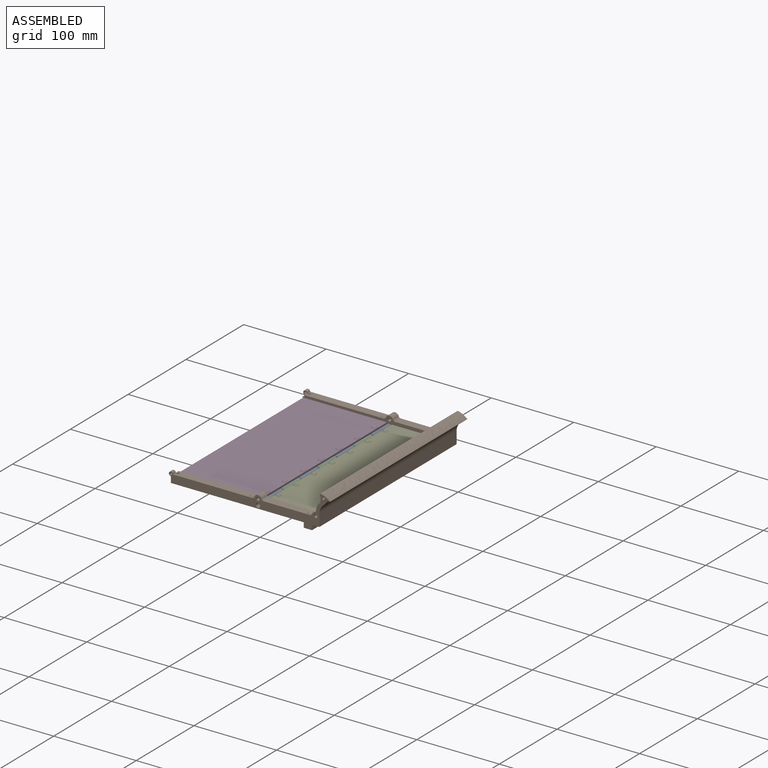
[diagram: assembled view]
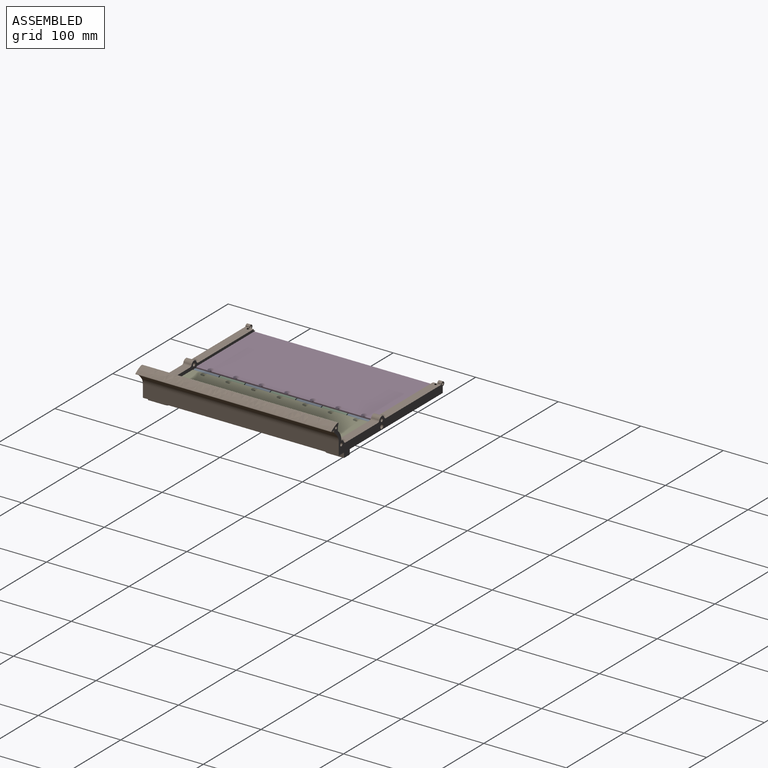
[diagram: assembled view, second angle]
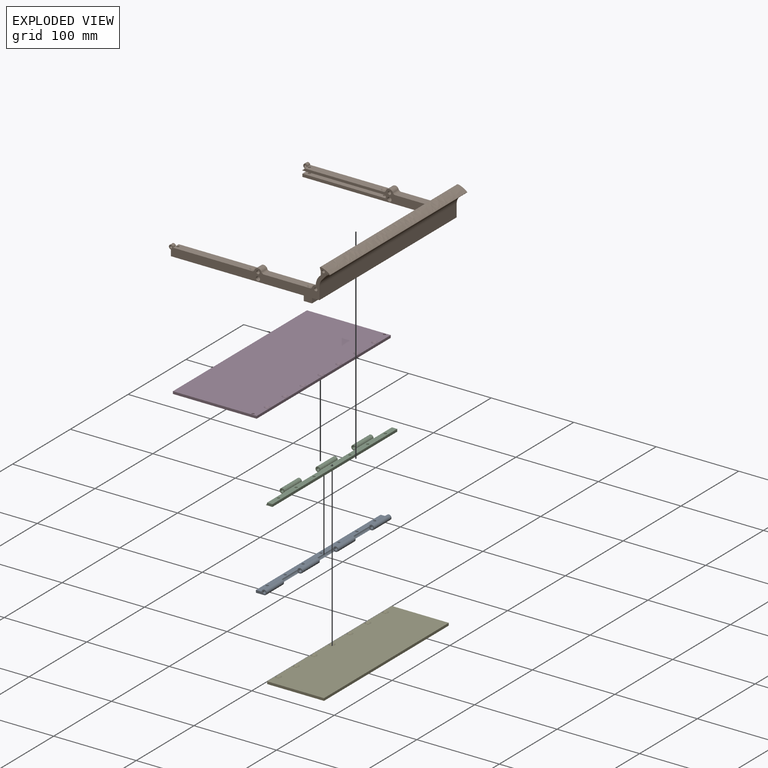
[diagram: exploded view]
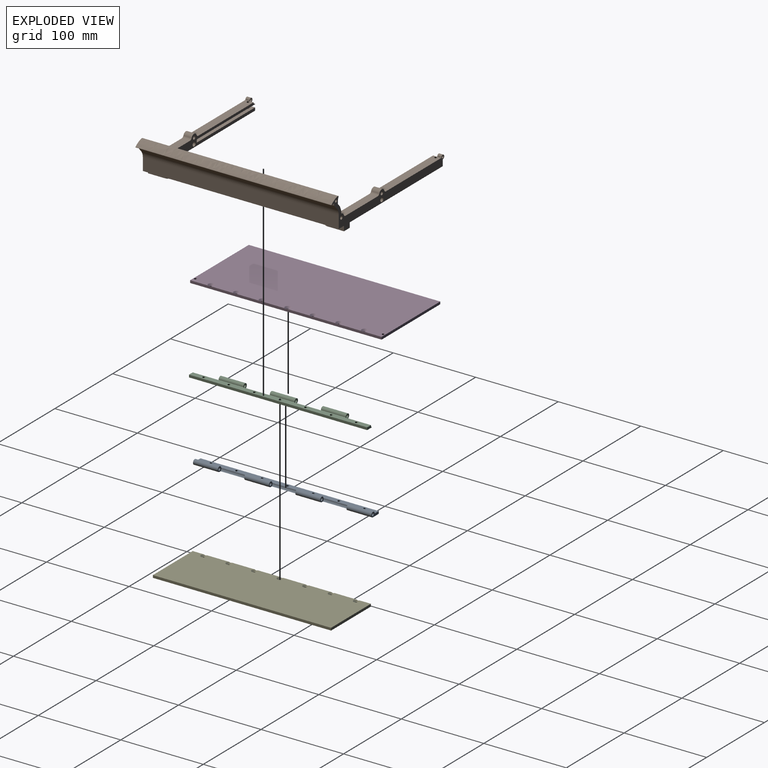
[diagram: exploded view, second angle]
ASSEMBLY  parts=5 mates=6
PART A: 29 faces, bbox 13x6x216 mm
  f0: plane 6.5x6mm, normal (0,0,1), area 21.1mm2, adj f1,f2,f5,f6,f7
  f1: plane 216x10mm, normal (0,-1,0), area 1937.5mm2, adj f0,f3,f4,f6,f7,f8,f9,f11
  f2: plane 216x7mm, normal (0,1,0), area 1414.5mm2, adj f0,f3,f4,f6,f7,f8,f9,f11
  f3: plane 216x3mm, normal (-1,0,0), area 648mm2, adj f1,f2,f4,f18
  f4: plane 13x6mm, normal (0,0,-1), area 42.1mm2, adj f1,f2,f3,f5,f6
  f5: cylinder r=1.7mm len=30mm, axis (0,0,-1), area 320.4mm2, adj f0,f4
  f6: cylinder r=3mm len=30mm, axis (0,0,-1), area 424.1mm2, adj f0,f1,f2,f4
  f7: cylinder r=3.5mm len=32mm, axis (0,0,-1), area 115.3mm2, adj f0,f1,f2,f8
  f8: plane 6.5x6mm, normal (0,0,-1), area 21.1mm2, adj f1,f2,f7,f10,f11
  f9: plane 6.5x6mm, normal (0,0,1), area 21.1mm2, adj f1,f2,f10,f11,f12
  f10: cylinder r=1.7mm len=30mm, axis (0,0,-1), area 320.4mm2, adj f8,f9
  f11: cylinder r=3mm len=30mm, axis (0,0,-1), area 424.1mm2, adj f1,f2,f8,f9
  f12: cylinder r=3.5mm len=32mm, axis (0,0,-1), area 115.3mm2, adj f1,f2,f9,f23
  f13: cylinder r=1.5mm len=3mm, axis (0,1,0), area 28.3mm2, adj f1,f2
  f14: cylinder r=1.5mm len=3mm, axis (0,1,0), area 28.3mm2, adj f1,f2
  f15: cylinder r=1.5mm len=3mm, axis (0,1,0), area 28.3mm2, adj f1,f2
  f16: cylinder r=1.5mm len=3mm, axis (0,1,0), area 28.3mm2, adj f1,f2
  f17: plane 6.5x6mm, normal (0,0,-1), area 21.1mm2, adj f1,f2,f19,f20,f21
  f18: plane 13x6mm, normal (0,0,1), area 42.1mm2, adj f1,f2,f3,f19,f20
  f19: cylinder r=1.7mm len=30mm, axis (0,0,1), area 320.4mm2, adj f17,f18
  f20: cylinder r=3mm len=30mm, axis (0,0,1), area 424.1mm2, adj f1,f2,f17,f18
  f21: cylinder r=3.5mm len=32mm, axis (0,0,1), area 115.3mm2, adj f1,f2,f17,f22
  f22: plane 6.5x6mm, normal (0,0,1), area 21.1mm2, adj f1,f2,f21,f24,f25
  f23: plane 6.5x6mm, normal (0,0,-1), area 21.1mm2, adj f1,f2,f12,f24,f25
  f24: cylinder r=1.7mm len=30mm, axis (0,0,1), area 320.4mm2, adj f22,f23
  f25: cylinder r=3mm len=30mm, axis (0,0,1), area 424.1mm2, adj f1,f2,f22,f23
  f26: cylinder r=1.5mm len=3mm, axis (0,1,0), area 28.3mm2, adj f1,f2
  f27: cylinder r=1.5mm len=3mm, axis (0,1,0), area 28.3mm2, adj f1,f2
  f28: cylinder r=1.5mm len=3mm, axis (0,1,0), area 28.3mm2, adj f1,f2
PART B: 90 faces, bbox 195.8x237.5x43.1 mm
  f0: plane 195.77x43.05mm, normal (0,1,0), area 2025.3mm2, adj f1,f3,f5,f8,f9,f10,f13,f14
  f1: plane 20.19x6mm, normal (1,0,0), area 90.6mm2, adj f0,f2,f17,f45,f46,f47
  f2: plane 188x33.83mm, normal (0,-1,0), area 1526.5mm2, adj f1,f3,f5,f6,f7,f8,f9,f10
  f3: plane 20.19x6mm, normal (-1,0,0), area 90.6mm2, adj f0,f2,f5,f45,f46,f47
  f4: cylinder r=1.5mm len=14.12mm, axis (0,0,1), area 132.1mm2, adj f26,f27,f47
  f5: plane 161x10mm, normal (0,0,-1), area 1595.9mm2, adj f0,f2,f3,f11,f12,f13
  f6: plane 217.5x15mm, normal (-1,0,0), area 3262.5mm2, adj f2,f7,f17,f52
  f7: cylinder r=14mm len=217.5mm, axis (0,1,0), area 3900.8mm2, adj f2,f6,f38,f52
  f8: cylinder r=4.5mm len=10mm, axis (0,1,0), area 56.1mm2, adj f0,f2,f25,f40
  f9: plane 95.93x10mm, normal (0,0,1), area 917.5mm2, adj f0,f2,f15,f23,f28,f33,f35
  f10: plane 55.86x10mm, normal (0,0,1), area 523.8mm2, adj f0,f2,f24,f25,f26
  f11: cylinder r=1.5mm len=3.5mm, axis (0,0,-1), area 33mm2, adj f5,f21
  f12: cylinder r=1.5mm len=3.5mm, axis (0,0,-1), area 33mm2, adj f5,f21
  f13: plane 10x7.5mm, normal (-1,0,0), area 47mm2, adj f0,f2,f5,f19,f20,f21,f33,f35
  f14: plane 237.5x15mm, normal (1,0,0), area 3562.5mm2, adj f0,f17,f37,f50
  f15: cylinder r=1.5mm len=3mm, axis (0,0,-1), area 28.3mm2, adj f9,f20
  f16: cylinder r=1.5mm len=3mm, axis (0,0,-1), area 9.4mm2, adj f20,f28,f29
  f17: plane 237.5x9mm, normal (0,0,-1), area 615mm2, adj f0,f1,f2,f6,f14,f50,f51,f52
  f18: plane 8x3.5mm, normal (-1,0,0), area 28mm2, adj f2,f19,f20,f21
  f19: plane 101x3.5mm, normal (0,-1,0), area 353.5mm2, adj f13,f18,f20,f21
  f20: plane 101x8mm, normal (0,0,-1), area 793.9mm2, adj f2,f13,f15,f16,f18,f19
  f21: plane 101x8mm, normal (0,0,1), area 793.9mm2, adj f2,f11,f12,f13,f18,f19
  f22: cylinder r=4.5mm len=10mm, axis (0,1,0), area 110.8mm2, adj f0,f2,f23,f24
  f23: cylinder r=3mm len=10mm, axis (0,1,0), area 34.7mm2, adj f0,f2,f9,f22,f29
  f24: cylinder r=3mm len=10mm, axis (0,1,0), area 36.9mm2, adj f0,f2,f10,f22
  f25: cylinder r=3mm len=10mm, axis (0,1,0), area 34.7mm2, adj f0,f2,f8,f10,f27
  f26: cone r=1.5mm half-angle=45deg, axis (0,0,1), area 33.1mm2, adj f4,f10,f27
  f27: bspline ~5.04x2.07mm, area 10.1mm2, adj f4,f25,f26
  f28: cone r=1.5mm half-angle=45deg, axis (0,0,1), area 33.1mm2, adj f9,f16,f29
  f29: bspline ~5.04x2.07mm, area 10.1mm2, adj f16,f23,f28
  f30: cylinder r=1.95mm len=10mm, axis (0,1,0), area 122.5mm2, adj f0,f2
  f31: cylinder r=1.95mm len=10mm, axis (0,1,0), area 122.5mm2, adj f0,f2
  f32: cylinder r=2.5mm len=10mm, axis (0,1,0), area 157.1mm2, adj f0,f2
  f33: cylinder r=2.5mm len=5mm, axis (0,1,0), area 19.6mm2, adj f2,f9,f13,f36
  f34: cylinder r=1.5mm len=5mm, axis (0,1,0), area 47.1mm2, adj f0,f36
  f35: cylinder r=2.5mm len=5mm, axis (0,1,0), area 58.9mm2, adj f0,f9,f13,f36
  f36: plane 5x5mm, normal (0,-1,0), area 12.6mm2, adj f33,f34,f35
  f37: cylinder r=12mm len=237.5mm, axis (0,1,0), area 2283.4mm2, adj f0,f14,f38,f50
  f38: plane 237.5x4.8mm, normal (0.74,0,-0.67), area 1538.2mm2, adj f0,f7,f37,f39,f50,f83
  f39: plane 10x2.41mm, normal (1,0,0.02), area 24.1mm2, adj f0,f2,f38,f43
  f40: cylinder r=16.43mm len=12.77mm, axis (0,1,0), area 146.3mm2, adj f0,f2,f8,f43
  f41: cylinder r=16.43mm len=217.5mm, axis (0,1,0), area 1420mm2, adj f2,f42,f43,f52
  f42: extruded ~217.5x0.53mm, area 115.7mm2, adj f2,f41,f43,f52
  f43: extruded ~237.5x12.33mm, area 6605.6mm2, adj f0,f39,f40,f41,f42,f50,f83,f84
  f44: cylinder r=1.7mm len=237.5mm, axis (0,1,0), area 2536.8mm2, adj f0,f50
  f45: plane 15.19x10mm, normal (0,0,1), area 128.6mm2, adj f1,f2,f3,f46,f48
  f46: cylinder r=5mm len=10mm, axis (0,0,1), area 47.1mm2, adj f1,f3,f45,f47
  f47: plane 25.19x10mm, normal (0,0,-1), area 234.1mm2, adj f0,f1,f3,f4,f46
  f48: cylinder r=2mm len=4mm, axis (0,0,1), area 37.7mm2, adj f45,f49
  f49: plane 4x4mm, normal (0,0,1), area 12.6mm2, adj f48
  f50: plane 195.77x43.05mm, normal (0,-1,0), area 2025.3mm2, adj f14,f17,f37,f38,f43,f44,f51,f53
  f51: plane 20.19x6mm, normal (1,0,0), area 90.6mm2, adj f17,f50,f52,f85,f86,f87
  f52: plane 188x33.83mm, normal (0,1,0), area 1526.5mm2, adj f6,f7,f17,f41,f42,f51,f53,f55
  f53: plane 20.19x6mm, normal (-1,0,0), area 90.6mm2, adj f50,f52,f55,f85,f86,f87
  f54: cylinder r=1.5mm len=14.12mm, axis (0,0,1), area 132.1mm2, adj f72,f73,f87
  f55: plane 161x10mm, normal (0,0,-1), area 1595.9mm2, adj f50,f52,f53,f59,f60,f61
  f56: cylinder r=4.5mm len=10mm, axis (0,-1,0), area 56.1mm2, adj f50,f52,f71,f84
  f57: plane 95.93x10mm, normal (0,0,1), area 917.5mm2, adj f50,f52,f62,f69,f74,f79,f81
  f58: plane 55.86x10mm, normal (0,0,1), area 523.8mm2, adj f50,f52,f70,f71,f72
  f59: cylinder r=1.5mm len=3.5mm, axis (0,0,-1), area 33mm2, adj f55,f67
  f60: cylinder r=1.5mm len=3.5mm, axis (0,0,-1), area 33mm2, adj f55,f67
  f61: plane 10x7.5mm, normal (-1,0,0), area 47mm2, adj f50,f52,f55,f65,f66,f67,f79,f81
  f62: cylinder r=1.5mm len=3mm, axis (0,0,-1), area 28.3mm2, adj f57,f66
  f63: cylinder r=1.5mm len=3mm, axis (0,0,-1), area 9.4mm2, adj f66,f74,f75
  f64: plane 8x3.5mm, normal (-1,0,0), area 28mm2, adj f52,f65,f66,f67
  f65: plane 101x3.5mm, normal (0,1,0), area 353.5mm2, adj f61,f64,f66,f67
  f66: plane 101x8mm, normal (0,0,-1), area 793.9mm2, adj f52,f61,f62,f63,f64,f65
  f67: plane 101x8mm, normal (0,0,1), area 793.9mm2, adj f52,f59,f60,f61,f64,f65
  f68: cylinder r=4.5mm len=10mm, axis (0,-1,0), area 110.8mm2, adj f50,f52,f69,f70
  f69: cylinder r=3mm len=10mm, axis (0,-1,0), area 34.7mm2, adj f50,f52,f57,f68,f75
  f70: cylinder r=3mm len=10mm, axis (0,-1,0), area 36.9mm2, adj f50,f52,f58,f68
  f71: cylinder r=3mm len=10mm, axis (0,-1,0), area 34.7mm2, adj f50,f52,f56,f58,f73
  f72: cone r=1.5mm half-angle=45deg, axis (0,0,1), area 33.1mm2, adj f54,f58,f73
  f73: bspline ~5.04x2.07mm, area 10.1mm2, adj f54,f71,f72
  f74: cone r=1.5mm half-angle=45deg, axis (0,0,1), area 33.1mm2, adj f57,f63,f75
  f75: bspline ~5.04x2.07mm, area 10.1mm2, adj f63,f69,f74
  f76: cylinder r=1.95mm len=10mm, axis (0,-1,0), area 122.5mm2, adj f50,f52
  f77: cylinder r=1.95mm len=10mm, axis (0,-1,0), area 122.5mm2, adj f50,f52
  f78: cylinder r=2.5mm len=10mm, axis (0,-1,0), area 157.1mm2, adj f50,f52
  f79: cylinder r=2.5mm len=5mm, axis (0,-1,0), area 19.6mm2, adj f52,f57,f61,f82
  f80: cylinder r=1.5mm len=5mm, axis (0,-1,0), area 47.1mm2, adj f50,f82
  f81: cylinder r=2.5mm len=5mm, axis (0,-1,0), area 58.9mm2, adj f50,f57,f61,f82
  f82: plane 5x5mm, normal (0,1,0), area 12.6mm2, adj f79,f80,f81
  f83: plane 10x2.41mm, normal (1,0,0.02), area 24.1mm2, adj f38,f43,f50,f52
  f84: cylinder r=16.43mm len=12.77mm, axis (0,-1,0), area 146.3mm2, adj f43,f50,f52,f56
  f85: plane 15.19x10mm, normal (0,0,1), area 128.6mm2, adj f51,f52,f53,f86,f88
  f86: cylinder r=5mm len=10mm, axis (0,0,1), area 47.1mm2, adj f51,f53,f85,f87
  f87: plane 25.19x10mm, normal (0,0,-1), area 234.1mm2, adj f50,f51,f53,f54,f86
  f88: cylinder r=2mm len=4mm, axis (0,0,1), area 37.7mm2, adj f85,f89
  f89: plane 4x4mm, normal (0,0,1), area 12.6mm2, adj f88
PART C: 28 faces, bbox 13x6x216 mm
  f0: cylinder r=3.5mm len=31mm, axis (0,0,-1), area 111.7mm2, adj f1,f3,f4,f5
  f1: plane 216x10mm, normal (0,-1,0), area 1883.4mm2, adj f0,f2,f4,f5,f6,f8,f9,f10
  f2: plane 216x3mm, normal (1,0,0), area 648mm2, adj f1,f3,f4,f18
  f3: plane 216x7mm, normal (0,1,0), area 1399.5mm2, adj f0,f2,f4,f5,f6,f8,f9,f10
  f4: plane 8.2x3mm, normal (0,0,-1), area 21mm2, adj f0,f1,f2,f3
  f5: plane 6.5x6mm, normal (0,0,-1), area 21.1mm2, adj f0,f1,f3,f7,f8
  f6: plane 6.5x6mm, normal (0,0,1), area 21.1mm2, adj f1,f3,f7,f8,f9
  f7: cylinder r=1.7mm len=30mm, axis (0,0,-1), area 320.4mm2, adj f5,f6
  f8: cylinder r=3mm len=30mm, axis (0,0,-1), area 424.1mm2, adj f1,f3,f5,f6
  f9: cylinder r=3.5mm len=32mm, axis (0,0,-1), area 115.3mm2, adj f1,f3,f6,f10
  f10: plane 6.5x6mm, normal (0,0,-1), area 21.1mm2, adj f1,f3,f9,f11,f12
  f11: cylinder r=1.7mm len=30mm, axis (0,0,-1), area 320.4mm2, adj f10,f24
  f12: cylinder r=3mm len=30mm, axis (0,0,-1), area 424.1mm2, adj f1,f3,f10,f24
  f13: cylinder r=1.5mm len=3mm, axis (0,-1,0), area 28.3mm2, adj f1,f3
  f14: cylinder r=1.5mm len=3mm, axis (0,-1,0), area 28.3mm2, adj f1,f3
  f15: cylinder r=1.5mm len=3mm, axis (0,-1,0), area 28.3mm2, adj f1,f3
  f16: cylinder r=1.5mm len=3mm, axis (0,-1,0), area 28.3mm2, adj f1,f3
  f17: cylinder r=3.5mm len=31mm, axis (0,0,1), area 111.7mm2, adj f1,f3,f18,f19
  f18: plane 8.2x3mm, normal (0,0,1), area 21mm2, adj f1,f2,f3,f17
  f19: plane 6.5x6mm, normal (0,0,1), area 21.1mm2, adj f1,f3,f17,f21,f22
  f20: plane 6.5x6mm, normal (0,0,-1), area 21.1mm2, adj f1,f3,f21,f22,f23
  f21: cylinder r=1.7mm len=30mm, axis (0,0,1), area 320.4mm2, adj f19,f20
  f22: cylinder r=3mm len=30mm, axis (0,0,1), area 424.1mm2, adj f1,f3,f19,f20
  f23: cylinder r=3.5mm len=32mm, axis (0,0,1), area 115.3mm2, adj f1,f3,f20,f24
  f24: plane 6.5x6mm, normal (0,0,1), area 21.1mm2, adj f1,f3,f11,f12,f23
  f25: cylinder r=1.5mm len=3mm, axis (0,-1,0), area 28.3mm2, adj f1,f3
  f26: cylinder r=1.5mm len=3mm, axis (0,-1,0), area 28.3mm2, adj f1,f3
  f27: cylinder r=1.5mm len=3mm, axis (0,-1,0), area 28.3mm2, adj f1,f3
PART D: 22 faces, bbox 101.8x3x232 mm
  f0: plane 232x101.5mm, normal (0,-1,0), area 23484.4mm2, adj f1,f3,f4,f5,f6,f7,f8,f9
  f1: plane 232x3mm, normal (1,0,0), area 693mm2, adj f0,f2,f4,f10,f11,f12,f13,f14
  f2: plane 232x101.5mm, normal (0,1,0), area 23267.5mm2, adj f1,f3,f4,f9,f10,f11,f12,f13
  f3: plane 232x3mm, normal (-1,0,0), area 696mm2, adj f0,f2,f4,f14
  f4: plane 101.5x3mm, normal (0,0,-1), area 304.5mm2, adj f0,f1,f2,f3
  f5: cylinder r=1.5mm len=3mm, axis (0,1,0), area 9.4mm2, adj f0,f10
  f6: cylinder r=1.5mm len=3mm, axis (0,1,0), area 9.4mm2, adj f0,f13
  f7: cylinder r=1.5mm len=3mm, axis (0,1,0), area 9.4mm2, adj f0,f12
  f8: cylinder r=1.5mm len=3mm, axis (0,1,0), area 9.4mm2, adj f0,f11
  f9: cylinder r=1.5mm len=3mm, axis (0,1,0), area 28.3mm2, adj f0,f2
  f10: cone r=3.5mm half-angle=45deg, axis (0,1,0), area 43.8mm2, adj f1,f2,f5
  f11: cone r=3.5mm half-angle=45deg, axis (0,1,0), area 43.8mm2, adj f1,f2,f8
  f12: cone r=3.5mm half-angle=45deg, axis (0,1,0), area 43.8mm2, adj f1,f2,f7
  f13: cone r=3.5mm half-angle=45deg, axis (0,1,0), area 43.8mm2, adj f1,f2,f6
  f14: plane 101.5x3mm, normal (0,0,1), area 304.5mm2, adj f0,f1,f2,f3
  f15: cylinder r=1.5mm len=3mm, axis (0,1,0), area 9.4mm2, adj f0,f21
  f16: cylinder r=1.5mm len=3mm, axis (0,1,0), area 9.4mm2, adj f0,f20
  f17: cylinder r=1.5mm len=3mm, axis (0,1,0), area 9.4mm2, adj f0,f19
  f18: cylinder r=1.5mm len=3mm, axis (0,1,0), area 28.3mm2, adj f0,f2
  f19: cone r=3.5mm half-angle=45deg, axis (0,1,0), area 43.8mm2, adj f1,f2,f17
  f20: cone r=3.5mm half-angle=45deg, axis (0,1,0), area 43.8mm2, adj f1,f2,f16
  f21: cone r=3.5mm half-angle=45deg, axis (0,1,0), area 43.8mm2, adj f1,f2,f15
PART E: 20 faces, bbox 69.5x3x216 mm
  f0: plane 216x69mm, normal (0,1,0), area 14643.1mm2, adj f1,f3,f4,f9,f10,f11,f12,f13
  f1: plane 216x3mm, normal (-1,0,0), area 639.7mm2, adj f0,f2,f4,f9,f10,f11,f12,f13
  f2: plane 216x69mm, normal (0,-1,0), area 14854.5mm2, adj f1,f3,f4,f5,f6,f7,f8,f13
  f3: plane 216x3mm, normal (1,0,0), area 648mm2, adj f0,f2,f4,f13
  f4: plane 69x3mm, normal (0,0,-1), area 207mm2, adj f0,f1,f2,f3
  f5: cylinder r=1.5mm len=3mm, axis (0,-1,0), area 9.4mm2, adj f2,f12
  f6: cylinder r=1.5mm len=3mm, axis (0,-1,0), area 9.4mm2, adj f2,f9
  f7: cylinder r=1.5mm len=3mm, axis (0,-1,0), area 9.4mm2, adj f2,f10
  f8: cylinder r=1.5mm len=3mm, axis (0,-1,0), area 9.4mm2, adj f2,f11
  f9: cone r=3.5mm half-angle=45deg, axis (0,1,0), area 42.7mm2, adj f0,f1,f6
  f10: cone r=3.5mm half-angle=45deg, axis (0,1,0), area 42.7mm2, adj f0,f1,f7
  f11: cone r=3.5mm half-angle=45deg, axis (0,1,0), area 42.7mm2, adj f0,f1,f8
  f12: cone r=3.5mm half-angle=45deg, axis (0,1,0), area 42.7mm2, adj f0,f1,f5
  f13: plane 69x3mm, normal (0,0,1), area 207mm2, adj f0,f1,f2,f3
  f14: cylinder r=1.5mm len=3mm, axis (0,-1,0), area 9.4mm2, adj f2,f17
  f15: cylinder r=1.5mm len=3mm, axis (0,-1,0), area 9.4mm2, adj f2,f18
  f16: cylinder r=1.5mm len=3mm, axis (0,-1,0), area 9.4mm2, adj f2,f19
  f17: cone r=3.5mm half-angle=45deg, axis (0,1,0), area 42.7mm2, adj f0,f1,f14
  f18: cone r=3.5mm half-angle=45deg, axis (0,1,0), area 42.7mm2, adj f0,f1,f15
  f19: cone r=3.5mm half-angle=45deg, axis (0,1,0), area 42.7mm2, adj f0,f1,f16
PLACE A rot(axis=(1,0,0),90deg) t=(5.58,129.54,26.38)mm
PLACE B t=(-9.92,-92.21,27.88)mm fixed
PLACE C rot(axis=(1,0,0),90deg) t=(5.58,129.54,26.38)mm
PLACE D rot(axis=(1,0,0),90deg) t=(5.58,129.54,26.38)mm
PLACE E rot(axis=(1,0,0),90deg) t=(5.58,129.54,26.38)mm
MATE fastened D.f6 <-> A.f14  axis (0,0,-1) through (-1.17,114.54,26.38)mm
MATE revolute D.f9 <-> B.f12  axis (0,0,-1) through (-3.92,135.29,26.38)mm
MATE fastened C.f25 <-> E.f14  axis (0,0,1) through (12.08,-70.96,26.38)mm
MATE fastened A.f26 <-> D.f15  axis (0,0,1) through (-1.17,-71.46,26.38)mm
MATE revolute D.f18 <-> B.f60  axis (0,0,-1) through (-3.92,-92.21,26.38)mm
MATE revolute A.f5 <-> C.f7  axis (0,-1,0) through (5.58,99.54,26.38)mm
